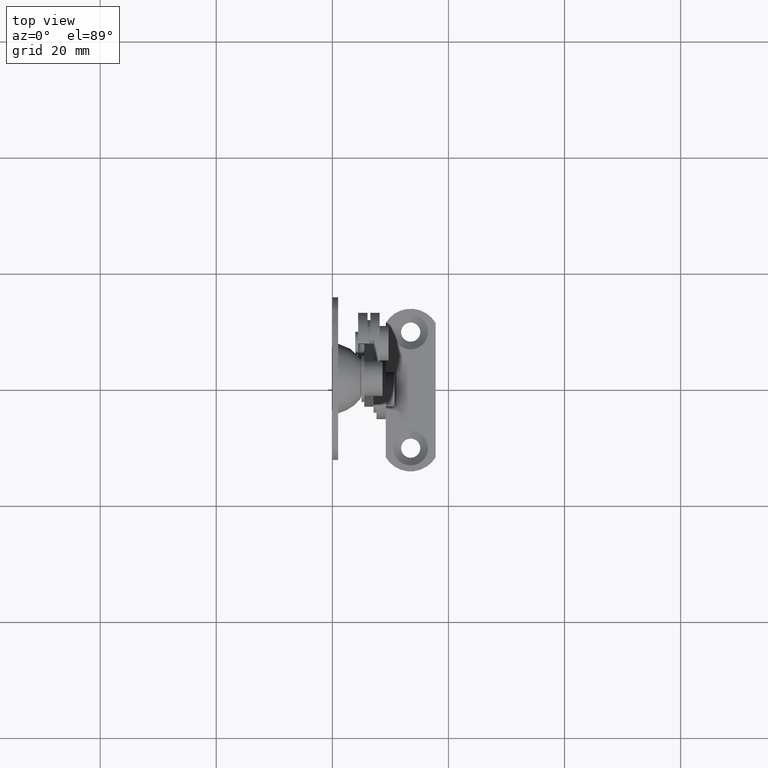
[diagram: clean part render]
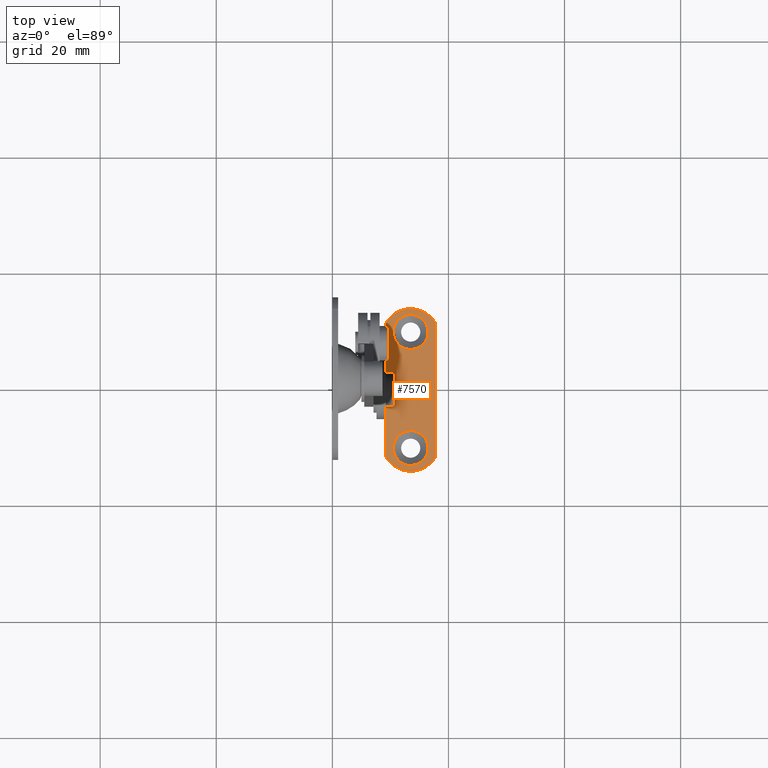
[diagram: same view with one face highlighted and labeled with its STEP entity id]
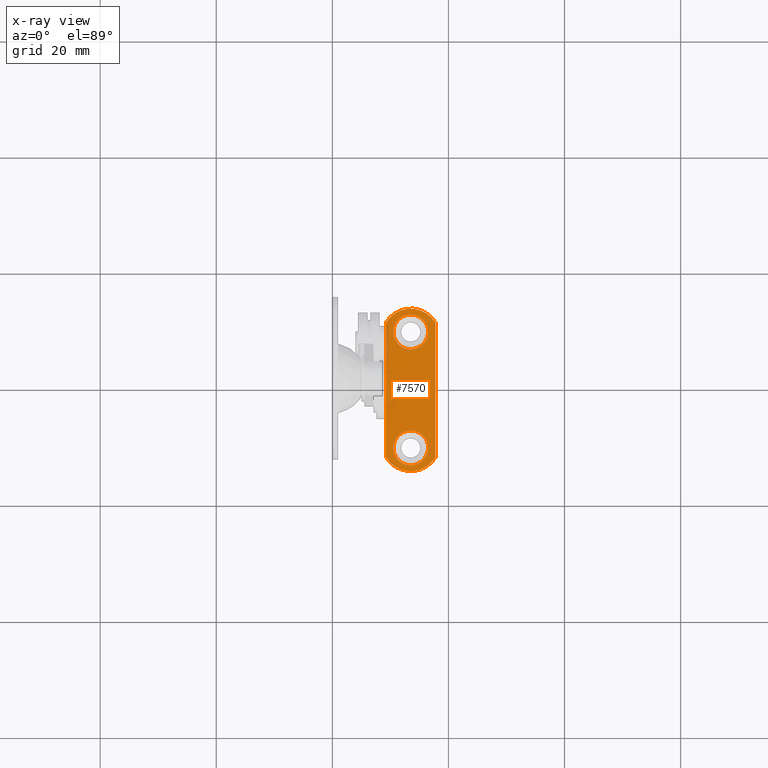
[diagram: x-ray of the same camera — body ghosted, the highlighted face saturated]
A machine part, top view. The second image highlights one B-rep face of the part: STEP entity #7570.
The next image is the same camera in x-ray: the body ghosted, the highlighted face saturated — about 2% of this face is hidden behind the body in this view.
In plain terms, the highlighted face is a freeform B-spline surface patch.
Its self-contained STEP definition (entity closure, byte-faithful):
#6694=CARTESIAN_POINT('',(11.562801359407951,-7.709332449867031,-58.999946728763909));
#6695=VERTEX_POINT('',#6694);
#6701=CARTESIAN_POINT('',(10.500027999999860,-9.999999999999780,-58.999946999999999));
#6702=VERTEX_POINT('',#6701);
#6703=CARTESIAN_POINT('',(11.562801359407951,-7.709332449867031,-58.999946728763909));
#6704=CARTESIAN_POINT('',(11.407311035674979,-7.840807701318767,-58.999946744331780));
#6705=CARTESIAN_POINT('',(11.094809443841889,-8.165020842563939,-58.999946782721622));
#6706=CARTESIAN_POINT('',(10.748520202690200,-8.738770476807275,-58.999946850658880));
#6707=CARTESIAN_POINT('',(10.543025198466010,-9.375546047967804,-58.999946926058783));
#6708=CARTESIAN_POINT('',(10.500003771263660,-9.796373779430812,-58.999946975888832));
#6709=CARTESIAN_POINT('',(10.500027999999860,-9.999999999999780,-58.999946999999999));
#6710=B_SPLINE_CURVE_WITH_KNOTS('',3,(#6703,#6704,#6705,#6706,#6707,#6708,#6709),.UNSPECIFIED.,.F.,.U.,(4,1,1,1,4),(0.000000050232849,0.610880641621922,1.343913375890443,1.995544642046287,2.606425233435711),.UNSPECIFIED.);
#6711=EDGE_CURVE('',#6695,#6702,#6710,.T.);
#6713=CARTESIAN_POINT('',(13.500030200431350,-12.999999999998970,-58.999947000000013));
#6714=VERTEX_POINT('',#6713);
#6715=CARTESIAN_POINT('',(10.500027999999860,-9.999999999999780,-58.999946999999999));
#6716=CARTESIAN_POINT('',(10.499741609748110,-10.368204387765950,-58.999947000000027));
#6717=CARTESIAN_POINT('',(10.605261200344620,-10.932474476794070,-58.999947000000120));
#6718=CARTESIAN_POINT('',(10.949156544956200,-11.615347339253420,-58.999946999999942));
#6719=CARTESIAN_POINT('',(11.313278626642971,-12.081957092603680,-58.999947000000013));
#6720=CARTESIAN_POINT('',(11.761463438545819,-12.468565153274911,-58.999946999999977));
#6721=CARTESIAN_POINT('',(12.297917440532240,-12.772491047836059,-58.999946999999999));
#6722=CARTESIAN_POINT('',(12.886448031268420,-12.958907376640390,-58.999947000000127));
#6723=CARTESIAN_POINT('',(13.303689468140590,-13.000022843944089,-58.999946999999644));
#6724=CARTESIAN_POINT('',(13.500030200431350,-12.999999999998970,-58.999947000000013));
#6725=B_SPLINE_CURVE_WITH_KNOTS('',3,(#6715,#6716,#6717,#6718,#6719,#6720,#6721,#6722,#6723,#6724),.UNSPECIFIED.,.F.,.U.,(4,1,1,1,1,1,1,4),(0.000000080106807,1.104494062407211,1.693580444526864,2.282628232250376,2.871657869118907,3.460747757288674,4.123470350630868,4.712508473235387),.UNSPECIFIED.);
#6726=EDGE_CURVE('',#6702,#6714,#6725,.T.);
#6728=CARTESIAN_POINT('',(16.500027999999858,-9.999999999999780,-58.999946999999999));
#6729=VERTEX_POINT('',#6728);
#6730=CARTESIAN_POINT('',(13.500030200431350,-12.999999999998970,-58.999947000000013));
#6731=CARTESIAN_POINT('',(13.917359605076889,-13.000544680659081,-58.999947000000027));
#6732=CARTESIAN_POINT('',(14.628688574048930,-12.849004192789090,-58.999946999999992));
#6733=CARTESIAN_POINT('',(15.404205207115140,-12.357784194038061,-58.999946999999963));
#6734=CARTESIAN_POINT('',(15.880311807410241,-11.857589363749559,-58.999947000000063));
#6735=CARTESIAN_POINT('',(16.170564978534379,-11.399204635878480,-58.999946999999892));
#6736=CARTESIAN_POINT('',(16.424916687638870,-10.785303159897669,-58.999946999999977));
#6737=CARTESIAN_POINT('',(16.500199357731130,-10.319092147932150,-58.999947000000162));
#6738=CARTESIAN_POINT('',(16.500027999999858,-9.999999999999780,-58.999946999999999));
#6739=B_SPLINE_CURVE_WITH_KNOTS('',3,(#6730,#6731,#6732,#6733,#6734,#6735,#6736,#6737,#6738),.UNSPECIFIED.,.F.,.U.,(4,1,1,1,1,1,4),(0.000000083122072,1.251760573435329,2.135372679499829,2.724391496189477,3.313474383906395,3.755284643126671,4.712505992774392),.UNSPECIFIED.);
#6740=EDGE_CURVE('',#6714,#6729,#6739,.T.);
#6742=CARTESIAN_POINT('',(15.676150515306690,-7.934936840145111,-58.999947274677027));
#6743=VERTEX_POINT('',#6742);
#6744=CARTESIAN_POINT('',(16.500027999999858,-9.999999999999780,-58.999946999999999));
#6745=CARTESIAN_POINT('',(16.500181870734760,-9.691543762047605,-58.999947041028193));
#6746=CARTESIAN_POINT('',(16.422479327225680,-9.193415936825039,-58.999947107285003));
#6747=CARTESIAN_POINT('',(16.123120557067150,-8.491967576679691,-58.999947200585517));
#6748=CARTESIAN_POINT('',(15.855861765088230,-8.124198507372046,-58.999947249503087));
#6749=CARTESIAN_POINT('',(15.676150515306690,-7.934936840145111,-58.999947274677027));
#6750=B_SPLINE_CURVE_WITH_KNOTS('',3,(#6744,#6745,#6746,#6747,#6748,#6749),.UNSPECIFIED.,.F.,.U.,(4,1,1,4),(0.000000027669307,0.925327585306591,1.494738089699688,2.277707769938933),.UNSPECIFIED.);
#6751=EDGE_CURVE('',#6729,#6743,#6750,.T.);
#6783=CARTESIAN_POINT('',(13.500025799568380,-7.000000000000586,-58.999946999999999));
#6784=VERTEX_POINT('',#6783);
#6785=CARTESIAN_POINT('',(15.676150515306690,-7.934936840145111,-58.999947274677027));
#6786=CARTESIAN_POINT('',(15.449333599722650,-7.695601101580594,-58.999947246047441));
#6787=CARTESIAN_POINT('',(15.018291922102810,-7.370626334724225,-58.999947191640373));
#6788=CARTESIAN_POINT('',(14.260833326480480,-7.067712445788696,-58.999947096031100));
#6789=CARTESIAN_POINT('',(13.779014756675970,-6.999907065302460,-58.999947035215222));
#6790=CARTESIAN_POINT('',(13.500025799568380,-7.000000000000586,-58.999946999999999));
#6791=B_SPLINE_CURVE_WITH_KNOTS('',3,(#6785,#6786,#6787,#6788,#6789,#6790),.UNSPECIFIED.,.F.,.U.,(4,1,1,4),(0.000000021351141,0.989138720639314,1.597838107883250,2.434801409304967),.UNSPECIFIED.);
#6792=EDGE_CURVE('',#6743,#6784,#6791,.T.);
#6794=CARTESIAN_POINT('',(13.500025799568380,-7.000000000000586,-58.999946999999999));
#6795=CARTESIAN_POINT('',(13.127035873190451,-6.999632199111389,-58.999946947776799));
#6796=CARTESIAN_POINT('',(12.425358775938181,-7.132770069596075,-58.999946849532982));
#6797=CARTESIAN_POINT('',(11.813942744013840,-7.496664990054422,-58.999946763926800));
#6798=CARTESIAN_POINT('',(11.562801359407951,-7.709332449867031,-58.999946728763909));
#6799=B_SPLINE_CURVE_WITH_KNOTS('',3,(#6794,#6795,#6796,#6797,#6798),.UNSPECIFIED.,.F.,.U.,(4,1,4),(0.000000030099435,1.118817477570400,2.106024418149282),.UNSPECIFIED.);
#6800=EDGE_CURVE('',#6784,#6695,#6799,.T.);
#7043=CARTESIAN_POINT('',(11.562801359407951,12.290667550132969,-58.999946728763923));
#7044=VERTEX_POINT('',#7043);
#7050=CARTESIAN_POINT('',(10.500027999999860,10.000000000000220,-58.999946999999999));
#7051=VERTEX_POINT('',#7050);
#7052=CARTESIAN_POINT('',(11.562801359407951,12.290667550132969,-58.999946728763923));
#7053=CARTESIAN_POINT('',(11.365810312913711,12.124165365974690,-58.999946748479417));
#7054=CARTESIAN_POINT('',(11.052167372071670,11.780350931293061,-58.999946789190027));
#7055=CARTESIAN_POINT('',(10.626391481617951,11.017800818525259,-58.999946879483147));
#7056=CARTESIAN_POINT('',(10.499544725765739,10.407348913227210,-58.999946951766262));
#7057=CARTESIAN_POINT('',(10.500027999999860,10.000000000000220,-58.999946999999999));
#7058=B_SPLINE_CURVE_WITH_KNOTS('',3,(#7052,#7053,#7054,#7055,#7056,#7057),.UNSPECIFIED.,.F.,.U.,(4,1,1,4),(0.000000050232402,0.773784436865439,1.384657662979193,2.606425233435710),.UNSPECIFIED.);
#7059=EDGE_CURVE('',#7044,#7051,#7058,.T.);
#7061=CARTESIAN_POINT('',(13.500030200431350,7.000000000001028,-58.999946999999999));
#7062=VERTEX_POINT('',#7061);
#7063=CARTESIAN_POINT('',(10.500027999999860,10.000000000000220,-58.999946999999999));
#7064=CARTESIAN_POINT('',(10.499857578836369,9.680907177808399,-58.999946999999999));
#7065=CARTESIAN_POINT('',(10.575140005171470,9.214694484312100,-58.999947000000049));
#7066=CARTESIAN_POINT('',(10.829499103615531,8.600802816409551,-58.999946999999963));
#7067=CARTESIAN_POINT('',(11.172462978105701,8.059002113292396,-58.999947000000112));
#7068=CARTESIAN_POINT('',(11.675545191691279,7.579959205257946,-58.999947000000112));
#7069=CARTESIAN_POINT('',(12.233567398261920,7.264030069286642,-58.999946999999779));
#7070=CARTESIAN_POINT('',(12.812857297015780,7.056735322719778,-58.999947000000240));
#7071=CARTESIAN_POINT('',(13.230041041204871,6.999893421247446,-58.999946999999821));
#7072=CARTESIAN_POINT('',(13.500030200431350,7.000000000001028,-58.999946999999999));
#7073=B_SPLINE_CURVE_WITH_KNOTS('',3,(#7063,#7064,#7065,#7066,#7067,#7068,#7069,#7070,#7071,#7072),.UNSPECIFIED.,.F.,.U.,(4,1,1,1,1,1,1,4),(0.000000080105655,0.957223162551790,1.399033148274931,1.988114694264822,2.871657869118516,3.460747757288385,3.902560998823757,4.712508473235403),.UNSPECIFIED.);
#7074=EDGE_CURVE('',#7051,#7062,#7073,.T.);
#7076=CARTESIAN_POINT('',(16.500027999999858,10.000000000000220,-58.999946999999999));
#7077=VERTEX_POINT('',#7076);
#7078=CARTESIAN_POINT('',(13.500030200431350,7.000000000001028,-58.999946999999999));
#7079=CARTESIAN_POINT('',(13.696370610867721,6.999976901508118,-58.999947000000027));
#7080=CARTESIAN_POINT('',(14.113612302310580,7.041093507519757,-58.999946999999963));
#7081=CARTESIAN_POINT('',(14.702142050512510,7.227508859471065,-58.999947000000070));
#7082=CARTESIAN_POINT('',(15.238595926292501,7.531434795768497,-58.999946999999899));
#7083=CARTESIAN_POINT('',(15.686780463149191,7.918042621995692,-58.999947000000212));
#7084=CARTESIAN_POINT('',(16.050913706885531,8.384649909107592,-58.999946999999850));
#7085=CARTESIAN_POINT('',(16.394747858649090,9.067537817141840,-58.999947000000162));
#7086=CARTESIAN_POINT('',(16.500362558217478,9.631784991099718,-58.999946999999970));
#7087=CARTESIAN_POINT('',(16.500027999999858,10.000000000000220,-58.999946999999999));
#7088=B_SPLINE_CURVE_WITH_KNOTS('',3,(#7078,#7079,#7080,#7081,#7082,#7083,#7084,#7085,#7086,#7087),.UNSPECIFIED.,.F.,.U.,(4,1,1,1,1,1,1,4),(0.000000083123732,0.589037880580633,1.251760573436395,1.840849139018272,2.429878607143954,3.018926482603702,3.608013092302147,4.712505992774394),.UNSPECIFIED.);
#7089=EDGE_CURVE('',#7062,#7077,#7088,.T.);
#7091=CARTESIAN_POINT('',(15.676150515306690,12.065063159854891,-58.999947274677027));
#7092=VERTEX_POINT('',#7091);
#7093=CARTESIAN_POINT('',(16.500027999999858,10.000000000000220,-58.999946999999999));
#7094=CARTESIAN_POINT('',(16.500113798576340,10.260991490927490,-58.999947034714943));
#7095=CARTESIAN_POINT('',(16.434588838699408,10.759184615507440,-58.999947100980087));
#7096=CARTESIAN_POINT('',(16.151299873805421,11.469341032650060,-58.999947195439333));
#7097=CARTESIAN_POINT('',(15.855855320463791,11.875796127833221,-58.999947249502299));
#7098=CARTESIAN_POINT('',(15.676150515306690,12.065063159854891,-58.999947274677027));
#7099=B_SPLINE_CURVE_WITH_KNOTS('',3,(#7093,#7094,#7095,#7096,#7097,#7098),.UNSPECIFIED.,.F.,.U.,(4,1,1,4),(0.000000027668786,0.782969707994192,1.494738089699603,2.277707769938933),.UNSPECIFIED.);
#7100=EDGE_CURVE('',#7077,#7092,#7099,.T.);
#7132=CARTESIAN_POINT('',(13.500025799568380,12.999999999999410,-58.999947000000013));
#7133=VERTEX_POINT('',#7132);
#7134=CARTESIAN_POINT('',(15.676150515306690,12.065063159854891,-58.999947274677027));
#7135=CARTESIAN_POINT('',(15.519059199395970,12.230670290529870,-58.999947254848557));
#7136=CARTESIAN_POINT('',(15.186385426470920,12.509315136661851,-58.999947212857293));
#7137=CARTESIAN_POINT('',(14.463538261929060,12.887483946377980,-58.999947121617687));
#7138=CARTESIAN_POINT('',(13.880524042515500,13.000391780008950,-58.999947048027522));
#7139=CARTESIAN_POINT('',(13.500025799568380,12.999999999999410,-58.999947000000013));
#7140=B_SPLINE_CURVE_WITH_KNOTS('',3,(#7134,#7135,#7136,#7137,#7138,#7139),.UNSPECIFIED.,.F.,.U.,(4,1,1,4),(0.000000021350691,0.684787953198585,1.293487780030412,2.434801409304972),.UNSPECIFIED.);
#7141=EDGE_CURVE('',#7092,#7133,#7140,.T.);
#7143=CARTESIAN_POINT('',(13.500025799568380,12.999999999999410,-58.999947000000013));
#7144=CARTESIAN_POINT('',(13.302589010714989,13.000018922348360,-58.999946972356383));
#7145=CARTESIAN_POINT('',(12.885786455751500,12.958728000158789,-58.999946913998492));
#7146=CARTESIAN_POINT('',(12.212602874733831,12.745238037118300,-58.999946819744892));
#7147=CARTESIAN_POINT('',(11.780490746126310,12.474927879863710,-58.999946759242853));
#7148=CARTESIAN_POINT('',(11.562801359407951,12.290667550132969,-58.999946728763923));
#7149=B_SPLINE_CURVE_WITH_KNOTS('',3,(#7143,#7144,#7145,#7146,#7147,#7148),.UNSPECIFIED.,.F.,.U.,(4,1,1,4),(0.000000030098884,0.592320223219870,1.250439713605533,2.106024418149288),.UNSPECIFIED.);
#7150=EDGE_CURVE('',#7133,#7044,#7149,.T.);
#7337=CARTESIAN_POINT('',(9.200027999999861,-11.551465000000240,-58.999946999999999));
#7338=VERTEX_POINT('',#7337);
#7339=CARTESIAN_POINT('',(17.800027999999749,-11.551465000000039,-58.999946999999999));
#7340=VERTEX_POINT('',#7339);
#7341=CARTESIAN_POINT('',(9.200027999999861,-11.551465000000240,-58.999946999999999));
#7342=CARTESIAN_POINT('',(9.406323082021125,-11.899296456275170,-58.999947000000027));
#7343=CARTESIAN_POINT('',(9.887350767328284,-12.522939439210431,-58.999946999999999));
#7344=CARTESIAN_POINT('',(10.816102096211431,-13.273144101527460,-58.999947000000077));
#7345=CARTESIAN_POINT('',(11.747725485300920,-13.717209978137880,-58.999946999999857));
#7346=CARTESIAN_POINT('',(12.690456391230640,-13.958605655278120,-58.999947000000148));
#7347=CARTESIAN_POINT('',(13.527403105094050,-14.026452804994401,-58.999946999999842));
#7348=CARTESIAN_POINT('',(14.496579830928740,-13.932122742431019,-58.999947000000240));
#7349=CARTESIAN_POINT('',(15.354295784024361,-13.675098008075850,-58.999946999999842));
#7350=CARTESIAN_POINT('',(16.122646579706700,-13.277719257644140,-58.999947000000077));
#7351=CARTESIAN_POINT('',(16.979057284136559,-12.662882004700959,-58.999946999999992));
#7352=CARTESIAN_POINT('',(17.511441956385109,-12.038633203827160,-58.999947000000020));
#7353=CARTESIAN_POINT('',(17.800027999999749,-11.551465000000039,-58.999946999999999));
#7354=B_SPLINE_CURVE_WITH_KNOTS('',3,(#7341,#7342,#7343,#7344,#7345,#7346,#7347,#7348,#7349,#7350,#7351,#7352,#7353),.UNSPECIFIED.,.F.,.U.,(4,1,1,1,1,1,1,1,1,1,4),(0.000000206577084,1.213208860461064,2.345559822064455,3.558799631912247,4.286721149685595,5.257255344408309,6.066099623701172,7.198440154118730,7.926376496853900,8.654316378380834,10.352816583535111),.UNSPECIFIED.);
#7355=EDGE_CURVE('',#7338,#7340,#7354,.T.);
#7392=CARTESIAN_POINT('',(9.200027999999861,-5.0,-58.999946999999999));
#7393=VERTEX_POINT('',#7392);
#7394=CARTESIAN_POINT('',(9.200027999999861,-5.0,-58.999946999999999));
#7395=CARTESIAN_POINT('',(9.200027999999861,-11.551465000000240,-58.999946999999999));
#7396=QUASI_UNIFORM_CURVE('',1,(#7394,#7395),.UNSPECIFIED.,.F.,.U.);
#7397=EDGE_CURVE('',#7393,#7338,#7396,.T.);
#7435=CARTESIAN_POINT('',(9.200027999999861,11.551465000000000,-58.999946999999999));
#7436=VERTEX_POINT('',#7435);
#7437=CARTESIAN_POINT('',(9.200027999999861,5.0,-58.999946999999999));
#7438=VERTEX_POINT('',#7437);
#7439=CARTESIAN_POINT('',(9.200027999999861,11.551465000000000,-58.999946999999999));
#7440=CARTESIAN_POINT('',(9.200027999999861,5.0,-58.999946999999999));
#7441=QUASI_UNIFORM_CURVE('',1,(#7439,#7440),.UNSPECIFIED.,.F.,.U.);
#7442=EDGE_CURVE('',#7436,#7438,#7441,.T.);
#7472=CARTESIAN_POINT('',(17.800027999999848,11.551465000000000,-58.999946999999999));
#7473=VERTEX_POINT('',#7472);
#7474=CARTESIAN_POINT('',(17.800027999999848,11.551465000000000,-58.999946999999999));
#7475=CARTESIAN_POINT('',(17.621222095755449,11.852893878244670,-58.999947000000063));
#7476=CARTESIAN_POINT('',(17.199865420039060,12.417921913647611,-58.999946999999928));
#7477=CARTESIAN_POINT('',(16.364167987025070,13.150769317392870,-58.999947000000162));
#7478=CARTESIAN_POINT('',(15.455169048571641,13.639523455983770,-58.999946999999821));
#7479=CARTESIAN_POINT('',(14.548266217995110,13.911210065239310,-58.999946999999999));
#7480=CARTESIAN_POINT('',(13.582674109779530,14.037000526868290,-58.999947000000702));
#7481=CARTESIAN_POINT('',(12.553000137751219,13.953510408165171,-58.999946999999743));
#7482=CARTESIAN_POINT('',(11.597757237362281,13.650226185653590,-58.999947000000112));
#7483=CARTESIAN_POINT('',(10.877407802157570,13.277724544998170,-58.999946999999942));
#7484=CARTESIAN_POINT('',(10.020999251977400,12.662880733493751,-58.999947000000112));
#7485=CARTESIAN_POINT('',(9.488613762264395,12.038633450704641,-58.999946999999899));
#7486=CARTESIAN_POINT('',(9.200027999999861,11.551465000000000,-58.999946999999999));
#7487=B_SPLINE_CURVE_WITH_KNOTS('',3,(#7474,#7475,#7476,#7477,#7478,#7479,#7480,#7481,#7482,#7483,#7484,#7485,#7486),.UNSPECIFIED.,.F.,.U.,(4,1,1,1,1,1,1,1,1,1,4),(0.000000206571498,1.051422436550597,2.102904004275413,3.316156167428940,4.124987251439446,4.933821457782587,6.227826639757378,7.198440154117590,7.926376496853024,8.654316378380354,10.352816583535381),.UNSPECIFIED.);
#7488=EDGE_CURVE('',#7473,#7436,#7487,.T.);
#7522=CARTESIAN_POINT('',(17.800027999999749,-11.551465000000039,-58.999946999999999));
#7523=CARTESIAN_POINT('',(17.800027999999848,11.551465000000000,-58.999946999999999));
#7524=QUASI_UNIFORM_CURVE('',1,(#7522,#7523),.UNSPECIFIED.,.F.,.U.);
#7525=EDGE_CURVE('',#7340,#7473,#7524,.T.);
#7537=CARTESIAN_POINT('',(8.770458451046805,-15.398601548305020,-58.999946999999999));
#7538=CARTESIAN_POINT('',(18.229597548952910,-15.398601548305020,-58.999946999999999));
#7539=CARTESIAN_POINT('',(8.770458451046805,15.398590283027090,-58.999946999999999));
#7540=CARTESIAN_POINT('',(18.229597548952910,15.398590283027090,-58.999946999999999));
#7541=B_SPLINE_SURFACE_WITH_KNOTS('',1,1,((#7537,#7539),(#7538,#7540)),.UNSPECIFIED.,.F.,.F.,.U.,(2,2),(2,2),(0.0,9.459139097906105),(0.0,30.797191831332100),.UNSPECIFIED.);
#7542=ORIENTED_EDGE('',*,*,#7397,.T.);
#7543=ORIENTED_EDGE('',*,*,#7355,.T.);
#7544=ORIENTED_EDGE('',*,*,#7525,.T.);
#7545=ORIENTED_EDGE('',*,*,#7488,.T.);
#7546=ORIENTED_EDGE('',*,*,#7442,.T.);
#7547=CARTESIAN_POINT('',(9.200027999999861,-5.0,-58.999946999999999));
#7548=CARTESIAN_POINT('',(9.200027999999861,5.0,-58.999946999999999));
#7549=QUASI_UNIFORM_CURVE('',1,(#7547,#7548),.UNSPECIFIED.,.F.,.U.);
#7550=EDGE_CURVE('',#7393,#7438,#7549,.T.);
#7551=ORIENTED_EDGE('',*,*,#7550,.F.);
#7552=EDGE_LOOP('',(#7542,#7543,#7544,#7545,#7546,#7551));
#7553=FACE_OUTER_BOUND('',#7552,.T.);
#7554=ORIENTED_EDGE('',*,*,#7074,.F.);
#7555=ORIENTED_EDGE('',*,*,#7059,.F.);
#7556=ORIENTED_EDGE('',*,*,#7150,.F.);
#7557=ORIENTED_EDGE('',*,*,#7141,.F.);
#7558=ORIENTED_EDGE('',*,*,#7100,.F.);
#7559=ORIENTED_EDGE('',*,*,#7089,.F.);
#7560=EDGE_LOOP('',(#7554,#7555,#7556,#7557,#7558,#7559));
#7561=FACE_BOUND('',#7560,.T.);
#7562=ORIENTED_EDGE('',*,*,#6726,.F.);
#7563=ORIENTED_EDGE('',*,*,#6711,.F.);
#7564=ORIENTED_EDGE('',*,*,#6800,.F.);
#7565=ORIENTED_EDGE('',*,*,#6792,.F.);
#7566=ORIENTED_EDGE('',*,*,#6751,.F.);
#7567=ORIENTED_EDGE('',*,*,#6740,.F.);
#7568=EDGE_LOOP('',(#7562,#7563,#7564,#7565,#7566,#7567));
#7569=FACE_BOUND('',#7568,.T.);
#7570=ADVANCED_FACE('',(#7553,#7561,#7569),#7541,.T.);